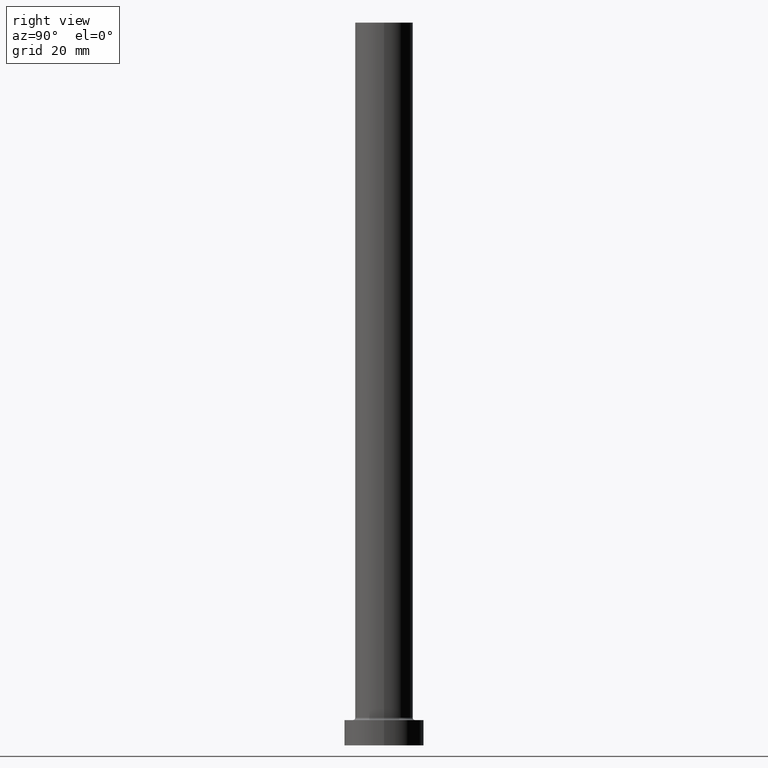
[diagram: clean part render]
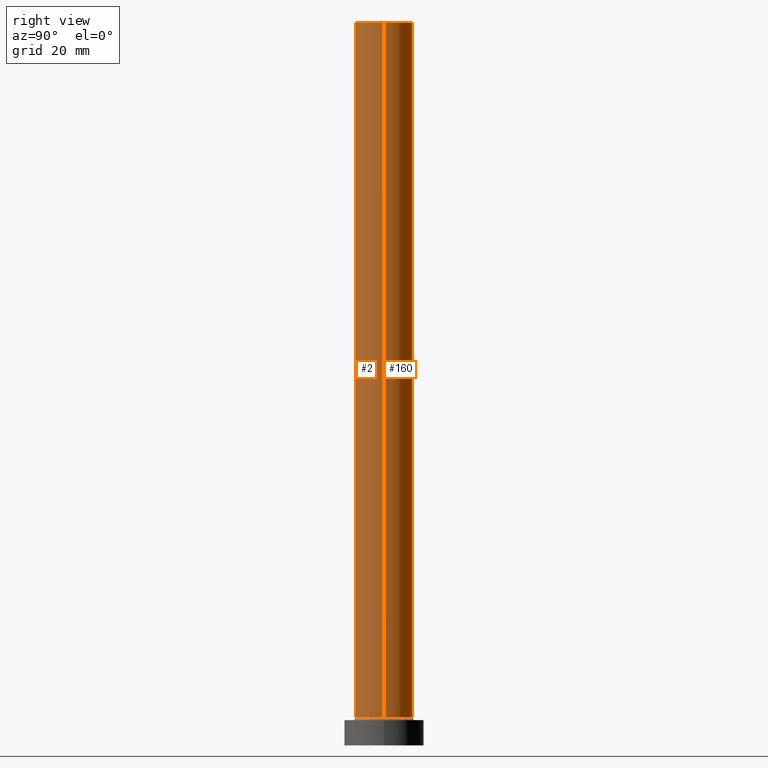
[diagram: same view with one multi-face feature highlighted, each face labeled with its STEP entity id]
A machine part, right view. The highlighted faces form ONE feature: a constant-radius fillet chain: 2 tangent blend faces with common blend radius 8 mm. The faces share edges in the B-rep.
Their STEP definitions:
[1] entity #160 (Cylinder):
#3 = CARTESIAN_POINT ( 'NONE',  ( 0.000000000000000000, 0.000000000000000000, 7.700000000000012612 ) ) ;
#16 = CARTESIAN_POINT ( 'NONE',  ( 8.000000000000000000, 9.797174393178825657E-16, 200.0000000000000000 ) ) ;
#21 = VERTEX_POINT ( 'NONE', #106 ) ;
#32 = CARTESIAN_POINT ( 'NONE',  ( -8.000000000000000000, 0.000000000000000000, 200.0000000000000000 ) ) ;
#45 = VECTOR ( 'NONE', #159, 1000.000000000000000 ) ;
#52 = AXIS2_PLACEMENT_3D ( 'NONE', #3, #186, #216 ) ;
#66 = ORIENTED_EDGE ( 'NONE', *, *, #365, .F. ) ;
#69 = CYLINDRICAL_SURFACE ( 'NONE', #364, 8.000000000000000000 ) ;
#81 = EDGE_CURVE ( 'NONE', #446, #438, #339, .T. ) ;
#106 = CARTESIAN_POINT ( 'NONE',  ( -8.000000000000000000, 0.000000000000000000, 7.700000000000012612 ) ) ;
#110 = DIRECTION ( 'NONE',  ( -1.000000000000000000, 0.000000000000000000, 0.000000000000000000 ) ) ;
#120 = CARTESIAN_POINT ( 'NONE',  ( 8.000000000000000000, 9.797174393178825657E-16, 7.700000000000012612 ) ) ;
#125 = CARTESIAN_POINT ( 'NONE',  ( -8.000000000000000000, 0.000000000000000000, 200.0000000000000000 ) ) ;
#126 = ORIENTED_EDGE ( 'NONE', *, *, #376, .T. ) ;
#159 = DIRECTION ( 'NONE',  ( -0.000000000000000000, -0.000000000000000000, -1.000000000000000000 ) ) ;
#160 = ADVANCED_FACE ( 'NONE', ( #426 ), #69, .T. ) ;
#161 = ORIENTED_EDGE ( 'NONE', *, *, #221, .T. ) ;
#163 = LINE ( 'NONE', #125, #349 ) ;
#168 = CIRCLE ( 'NONE', #52, 8.000000000000000000 ) ;
#186 = DIRECTION ( 'NONE',  ( 0.000000000000000000, 0.000000000000000000, 1.000000000000000000 ) ) ;
#187 = CARTESIAN_POINT ( 'NONE',  ( 0.000000000000000000, 0.000000000000000000, 200.0000000000000000 ) ) ;
#195 = EDGE_LOOP ( 'NONE', ( #202, #126, #161, #66 ) ) ;
#202 = ORIENTED_EDGE ( 'NONE', *, *, #81, .F. ) ;
#206 = CARTESIAN_POINT ( 'NONE',  ( 8.000000000000000000, 9.797174393178825657E-16, 200.0000000000000000 ) ) ;
#216 = DIRECTION ( 'NONE',  ( 1.000000000000000000, 0.000000000000000000, 0.000000000000000000 ) ) ;
#221 = EDGE_CURVE ( 'NONE', #336, #21, #168, .T. ) ;
#224 = LINE ( 'NONE', #16, #45 ) ;
#273 = AXIS2_PLACEMENT_3D ( 'NONE', #392, #313, #453 ) ;
#313 = DIRECTION ( 'NONE',  ( 0.000000000000000000, 0.000000000000000000, 1.000000000000000000 ) ) ;
#329 = DIRECTION ( 'NONE',  ( -0.000000000000000000, -0.000000000000000000, -1.000000000000000000 ) ) ;
#336 = VERTEX_POINT ( 'NONE', #120 ) ;
#339 = CIRCLE ( 'NONE', #273, 8.000000000000000000 ) ;
#349 = VECTOR ( 'NONE', #408, 1000.000000000000000 ) ;
#364 = AXIS2_PLACEMENT_3D ( 'NONE', #187, #329, #110 ) ;
#365 = EDGE_CURVE ( 'NONE', #438, #21, #163, .T. ) ;
#376 = EDGE_CURVE ( 'NONE', #446, #336, #224, .T. ) ;
#392 = CARTESIAN_POINT ( 'NONE',  ( 0.000000000000000000, 0.000000000000000000, 200.0000000000000000 ) ) ;
#408 = DIRECTION ( 'NONE',  ( -0.000000000000000000, -0.000000000000000000, -1.000000000000000000 ) ) ;
#426 = FACE_OUTER_BOUND ( 'NONE', #195, .T. ) ;
#438 = VERTEX_POINT ( 'NONE', #32 ) ;
#446 = VERTEX_POINT ( 'NONE', #206 ) ;
#453 = DIRECTION ( 'NONE',  ( 1.000000000000000000, 0.000000000000000000, 0.000000000000000000 ) ) ;
[2] entity #2 (Cylinder):
#2 = ADVANCED_FACE ( 'NONE', ( #139 ), #348, .T. ) ;
#16 = CARTESIAN_POINT ( 'NONE',  ( 8.000000000000000000, 9.797174393178825657E-16, 200.0000000000000000 ) ) ;
#18 = DIRECTION ( 'NONE',  ( 1.000000000000000000, 0.000000000000000000, 0.000000000000000000 ) ) ;
#21 = VERTEX_POINT ( 'NONE', #106 ) ;
#32 = CARTESIAN_POINT ( 'NONE',  ( -8.000000000000000000, 0.000000000000000000, 200.0000000000000000 ) ) ;
#45 = VECTOR ( 'NONE', #159, 1000.000000000000000 ) ;
#80 = CARTESIAN_POINT ( 'NONE',  ( 0.000000000000000000, 0.000000000000000000, 200.0000000000000000 ) ) ;
#106 = CARTESIAN_POINT ( 'NONE',  ( -8.000000000000000000, 0.000000000000000000, 7.700000000000012612 ) ) ;
#120 = CARTESIAN_POINT ( 'NONE',  ( 8.000000000000000000, 9.797174393178825657E-16, 7.700000000000012612 ) ) ;
#125 = CARTESIAN_POINT ( 'NONE',  ( -8.000000000000000000, 0.000000000000000000, 200.0000000000000000 ) ) ;
#132 = DIRECTION ( 'NONE',  ( -1.000000000000000000, 0.000000000000000000, 0.000000000000000000 ) ) ;
#139 = FACE_OUTER_BOUND ( 'NONE', #167, .T. ) ;
#152 = CIRCLE ( 'NONE', #220, 8.000000000000000000 ) ;
#159 = DIRECTION ( 'NONE',  ( -0.000000000000000000, -0.000000000000000000, -1.000000000000000000 ) ) ;
#163 = LINE ( 'NONE', #125, #349 ) ;
#167 = EDGE_LOOP ( 'NONE', ( #271, #357, #436, #378 ) ) ;
#173 = CARTESIAN_POINT ( 'NONE',  ( 0.000000000000000000, 0.000000000000000000, 200.0000000000000000 ) ) ;
#206 = CARTESIAN_POINT ( 'NONE',  ( 8.000000000000000000, 9.797174393178825657E-16, 200.0000000000000000 ) ) ;
#220 = AXIS2_PLACEMENT_3D ( 'NONE', #307, #404, #299 ) ;
#224 = LINE ( 'NONE', #16, #45 ) ;
#231 = AXIS2_PLACEMENT_3D ( 'NONE', #173, #424, #132 ) ;
#271 = ORIENTED_EDGE ( 'NONE', *, *, #376, .F. ) ;
#277 = AXIS2_PLACEMENT_3D ( 'NONE', #80, #374, #18 ) ;
#299 = DIRECTION ( 'NONE',  ( 1.000000000000000000, 0.000000000000000000, 0.000000000000000000 ) ) ;
#307 = CARTESIAN_POINT ( 'NONE',  ( 0.000000000000000000, 0.000000000000000000, 7.700000000000012612 ) ) ;
#336 = VERTEX_POINT ( 'NONE', #120 ) ;
#348 = CYLINDRICAL_SURFACE ( 'NONE', #231, 8.000000000000000000 ) ;
#349 = VECTOR ( 'NONE', #408, 1000.000000000000000 ) ;
#350 = EDGE_CURVE ( 'NONE', #21, #336, #152, .T. ) ;
#356 = EDGE_CURVE ( 'NONE', #438, #446, #420, .T. ) ;
#357 = ORIENTED_EDGE ( 'NONE', *, *, #356, .F. ) ;
#365 = EDGE_CURVE ( 'NONE', #438, #21, #163, .T. ) ;
#374 = DIRECTION ( 'NONE',  ( 0.000000000000000000, 0.000000000000000000, 1.000000000000000000 ) ) ;
#376 = EDGE_CURVE ( 'NONE', #446, #336, #224, .T. ) ;
#378 = ORIENTED_EDGE ( 'NONE', *, *, #350, .T. ) ;
#404 = DIRECTION ( 'NONE',  ( 0.000000000000000000, 0.000000000000000000, 1.000000000000000000 ) ) ;
#408 = DIRECTION ( 'NONE',  ( -0.000000000000000000, -0.000000000000000000, -1.000000000000000000 ) ) ;
#420 = CIRCLE ( 'NONE', #277, 8.000000000000000000 ) ;
#424 = DIRECTION ( 'NONE',  ( -0.000000000000000000, -0.000000000000000000, -1.000000000000000000 ) ) ;
#436 = ORIENTED_EDGE ( 'NONE', *, *, #365, .T. ) ;
#438 = VERTEX_POINT ( 'NONE', #32 ) ;
#446 = VERTEX_POINT ( 'NONE', #206 ) ;